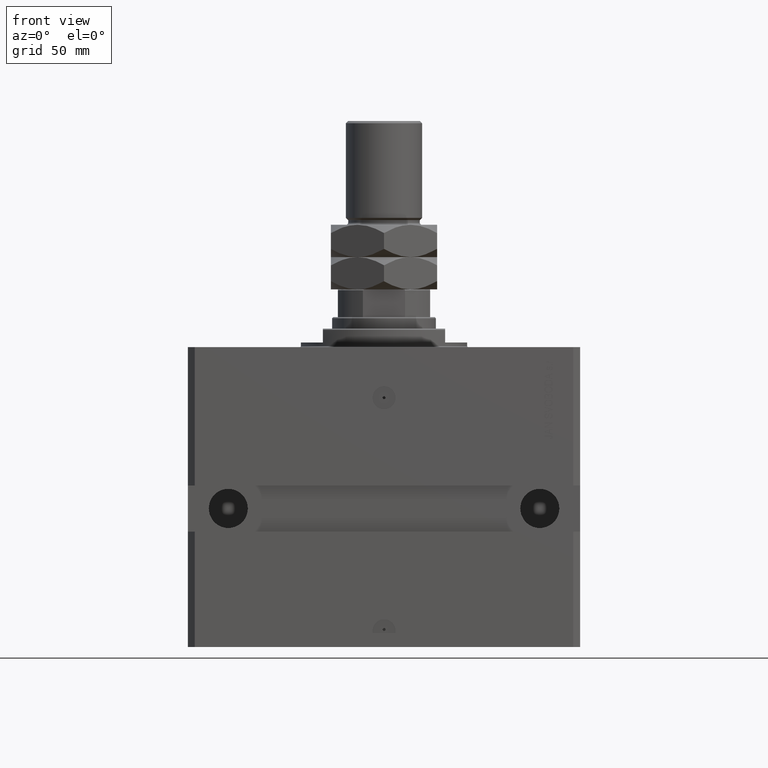
[diagram: clean part render]
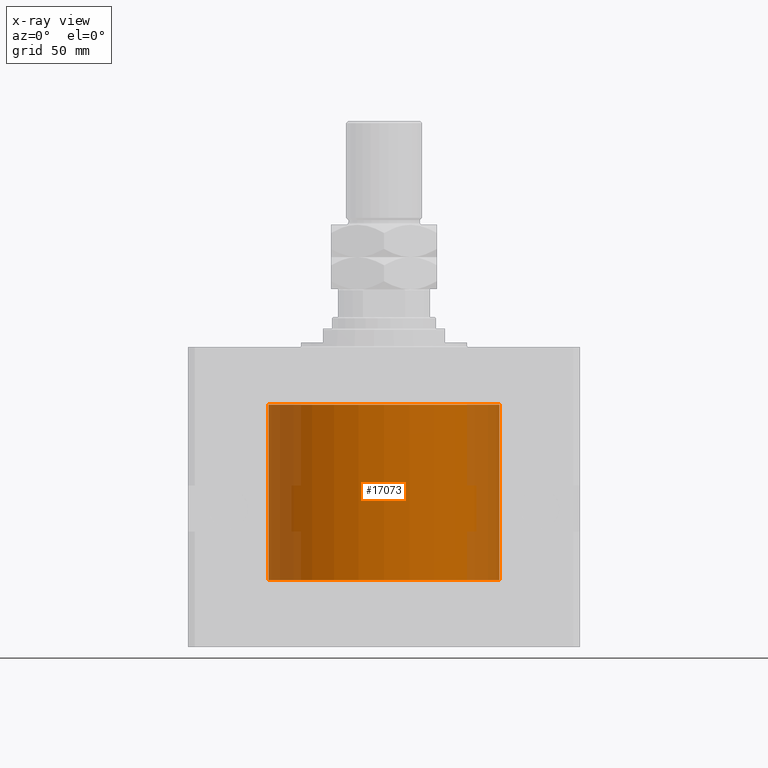
[diagram: x-ray — body ghosted, one internal face saturated and labeled with its STEP entity id]
A machine part, front view, then the same camera in x-ray: the body is ghosted and one INTERNAL B-rep face — a face not visible from any outside direction — is saturated and labeled: STEP entity #17073.
In plain terms, the highlighted cylindrical surface (partial cylindrical patch) has radius 50 mm, axis along (0, 0, 1).
Its self-contained STEP definition (entity closure, byte-faithful):
#3466 = DIRECTION ( 'NONE',  ( 1.000000000000000000, 0.000000000000000000, 0.000000000000000000 ) ) ;
#6266 = CARTESIAN_POINT ( 'NONE',  ( -50.00000000000000000, 6.123233995736764507E-15, -24.99999999999999289 ) ) ;
#10979 = VERTEX_POINT ( 'NONE', #28560 ) ;
#11125 = FACE_OUTER_BOUND ( 'NONE', #27255, .T. ) ;
#12887 = VERTEX_POINT ( 'NONE', #16381 ) ;
#13922 = DIRECTION ( 'NONE',  ( 1.000000000000000000, 0.000000000000000000, 0.000000000000000000 ) ) ;
#15586 = VERTEX_POINT ( 'NONE', #32256 ) ;
#16381 = CARTESIAN_POINT ( 'NONE',  ( 50.00000000000000000, 0.000000000000000000, -101.0999999999999943 ) ) ;
#17073 = ADVANCED_FACE ( 'NONE', ( #11125 ), #36295, .F. ) ;
#17975 = CARTESIAN_POINT ( 'NONE',  ( 0.000000000000000000, 0.000000000000000000, -24.99999999999999289 ) ) ;
#20307 = EDGE_CURVE ( 'NONE', #10979, #26899, #38165, .T. ) ;
#20816 = EDGE_CURVE ( 'NONE', #26899, #15586, #23311, .T. ) ;
#21587 = AXIS2_PLACEMENT_3D ( 'NONE', #46834, #25745, #3466 ) ;
#23003 = LINE ( 'NONE', #26359, #38573 ) ;
#23311 = CIRCLE ( 'NONE', #36308, 50.00000000000000000 ) ;
#24028 = AXIS2_PLACEMENT_3D ( 'NONE', #32218, #28852, #25511 ) ;
#24271 = CARTESIAN_POINT ( 'NONE',  ( -50.00000000000000000, 6.123233995736764507E-15, -101.0999999999999943 ) ) ;
#25511 = DIRECTION ( 'NONE',  ( 1.000000000000000000, 0.000000000000000000, 0.000000000000000000 ) ) ;
#25745 = DIRECTION ( 'NONE',  ( -0.000000000000000000, -0.000000000000000000, 1.000000000000000000 ) ) ;
#26359 = CARTESIAN_POINT ( 'NONE',  ( 50.00000000000000000, 0.000000000000000000, -101.0999999999999943 ) ) ;
#26899 = VERTEX_POINT ( 'NONE', #6266 ) ;
#27255 = EDGE_LOOP ( 'NONE', ( #43217, #44334, #37431, #46484 ) ) ;
#27893 = VECTOR ( 'NONE', #45585, 1000.000000000000000 ) ;
#28560 = CARTESIAN_POINT ( 'NONE',  ( -50.00000000000000000, 6.123233995736764507E-15, -101.0999999999999943 ) ) ;
#28852 = DIRECTION ( 'NONE',  ( 0.000000000000000000, 0.000000000000000000, 1.000000000000000000 ) ) ;
#32218 = CARTESIAN_POINT ( 'NONE',  ( 0.000000000000000000, 0.000000000000000000, -101.0999999999999943 ) ) ;
#32256 = CARTESIAN_POINT ( 'NONE',  ( 50.00000000000000000, 0.000000000000000000, -24.99999999999999289 ) ) ;
#32573 = DIRECTION ( 'NONE',  ( 0.000000000000000000, 0.000000000000000000, 1.000000000000000000 ) ) ;
#33060 = DIRECTION ( 'NONE',  ( -0.000000000000000000, -0.000000000000000000, 1.000000000000000000 ) ) ;
#33126 = EDGE_CURVE ( 'NONE', #10979, #12887, #46207, .T. ) ;
#36295 = CYLINDRICAL_SURFACE ( 'NONE', #21587, 50.00000000000000000 ) ;
#36308 = AXIS2_PLACEMENT_3D ( 'NONE', #17975, #32573, #13922 ) ;
#37431 = ORIENTED_EDGE ( 'NONE', *, *, #20816, .T. ) ;
#37610 = EDGE_CURVE ( 'NONE', #12887, #15586, #23003, .T. ) ;
#38165 = LINE ( 'NONE', #24271, #27893 ) ;
#38573 = VECTOR ( 'NONE', #33060, 1000.000000000000000 ) ;
#43217 = ORIENTED_EDGE ( 'NONE', *, *, #33126, .F. ) ;
#44334 = ORIENTED_EDGE ( 'NONE', *, *, #20307, .T. ) ;
#45585 = DIRECTION ( 'NONE',  ( -0.000000000000000000, -0.000000000000000000, 1.000000000000000000 ) ) ;
#46207 = CIRCLE ( 'NONE', #24028, 50.00000000000000000 ) ;
#46484 = ORIENTED_EDGE ( 'NONE', *, *, #37610, .F. ) ;
#46834 = CARTESIAN_POINT ( 'NONE',  ( 0.000000000000000000, 0.000000000000000000, -101.0999999999999943 ) ) ;